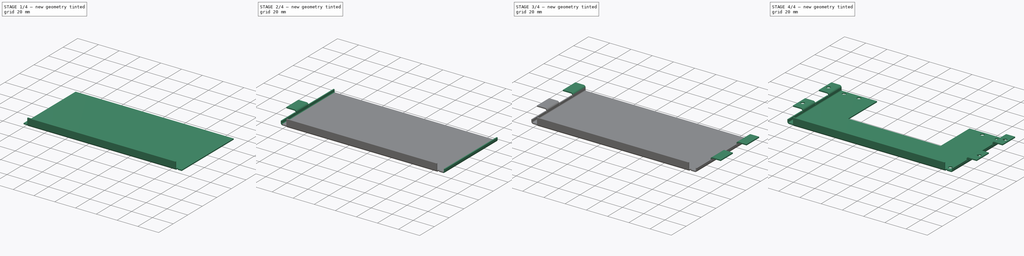
[diagram: build sequence overview — one tinted view per stage of 4, left to right]
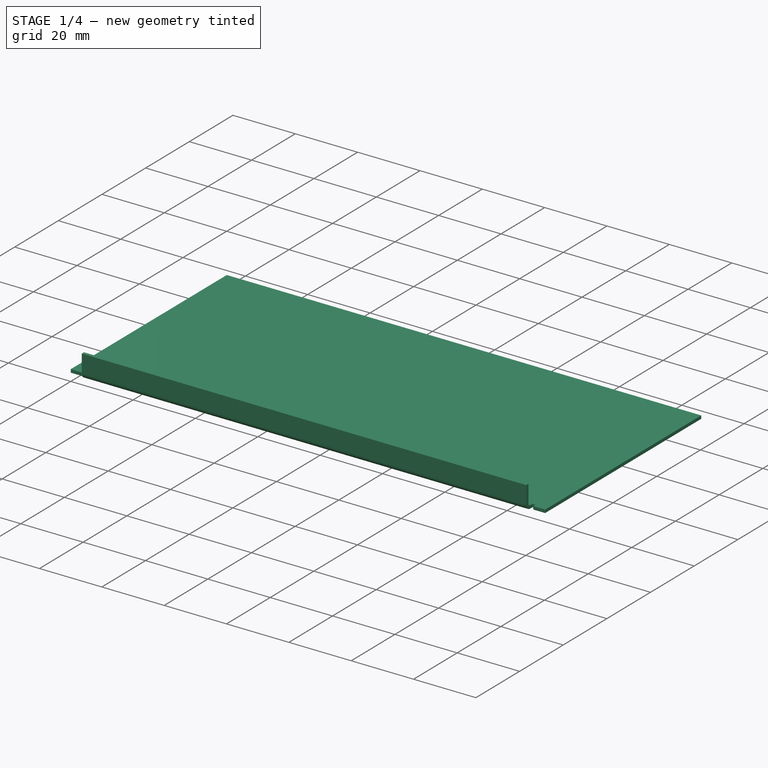
[diagram: stage 1 of 4 — iso view after this stage's code; geometry added in this stage tinted green]
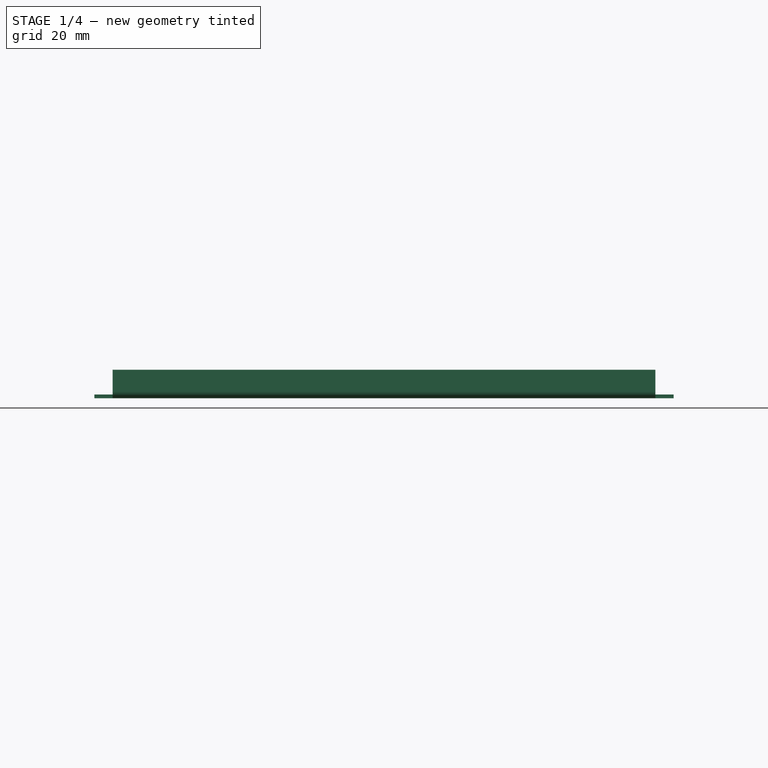
[diagram: stage 1 of 4 — front view after this stage's code; geometry added in this stage tinted green]
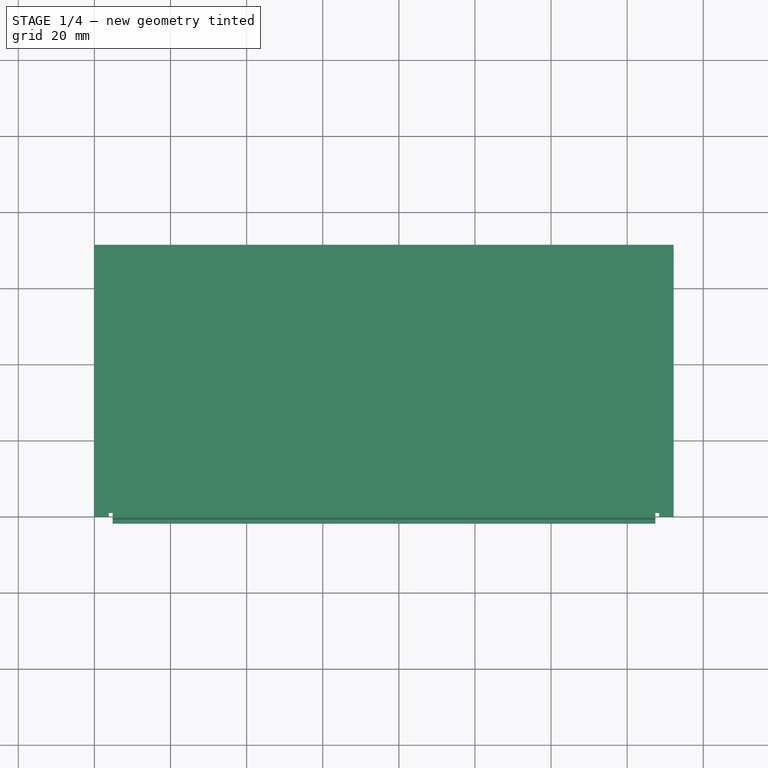
[diagram: stage 1 of 4 — top view after this stage's code; geometry added in this stage tinted green]
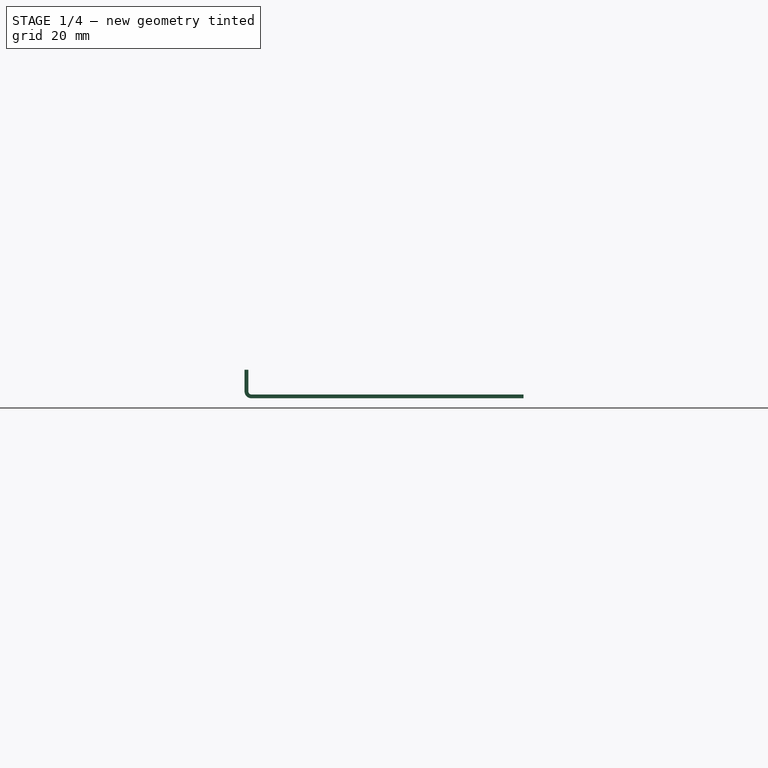
[diagram: stage 1 of 4 — right view after this stage's code; geometry added in this stage tinted green]
FCSTD DOCUMENT  (FreeCAD 0.16R6706 (Git))
Label: emi-prototyp7-ramka-ekran_10_1
License: All rights reserved
LicenseURL: http://en.wikipedia.org/wiki/All_rights_reserved
objects: Part::FeaturePython×7, Sketcher::SketchObject×3, PartDesign::Pocket×2, Part::Box×1, Part::Feature×1
note: 16 computed .brp shape members not serialized (recipe doc carries the construction recipe); baked Part::Feature solids carry a one-line shape summary decoded from their .brp

FEATURE [Part::Box] Box  label="Kostka"
  Height = 1
  Length = 152.2
  Width = 71.5
FEATURE [Part::FeaturePython] Bend  # WARN: FeaturePython — macro-defined, semantics opaque (R4)
  angle = 90
  baseObject = -> Box [Face3]
  gap1 = 4.8
  gap2 = 4.8
  invert = false
  length = 5.7
  radius = 0.8
  reliefd = 1
  reliefw = 1
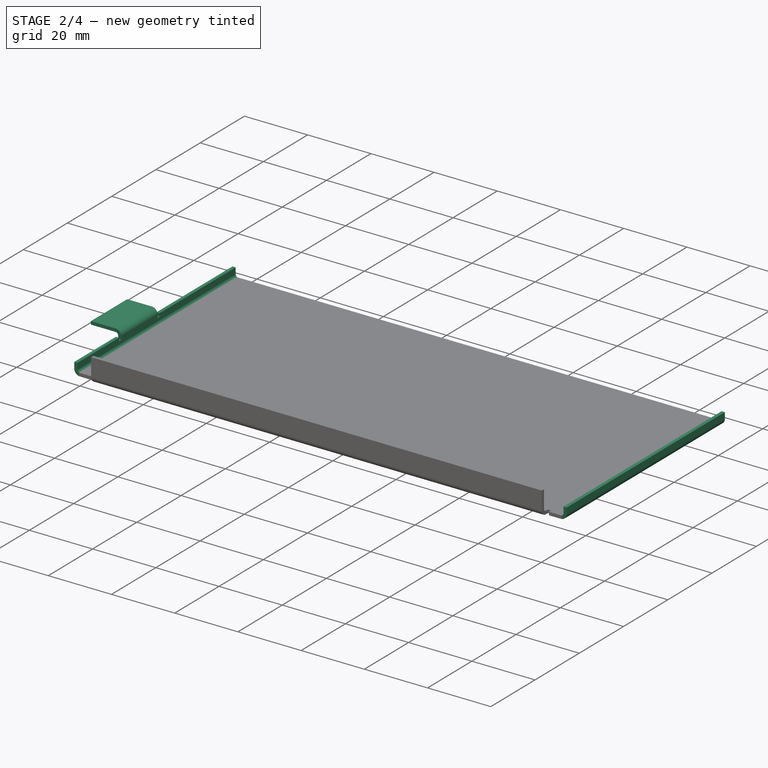
[diagram: stage 2 of 4 — iso view after this stage's code; geometry added in this stage tinted green]
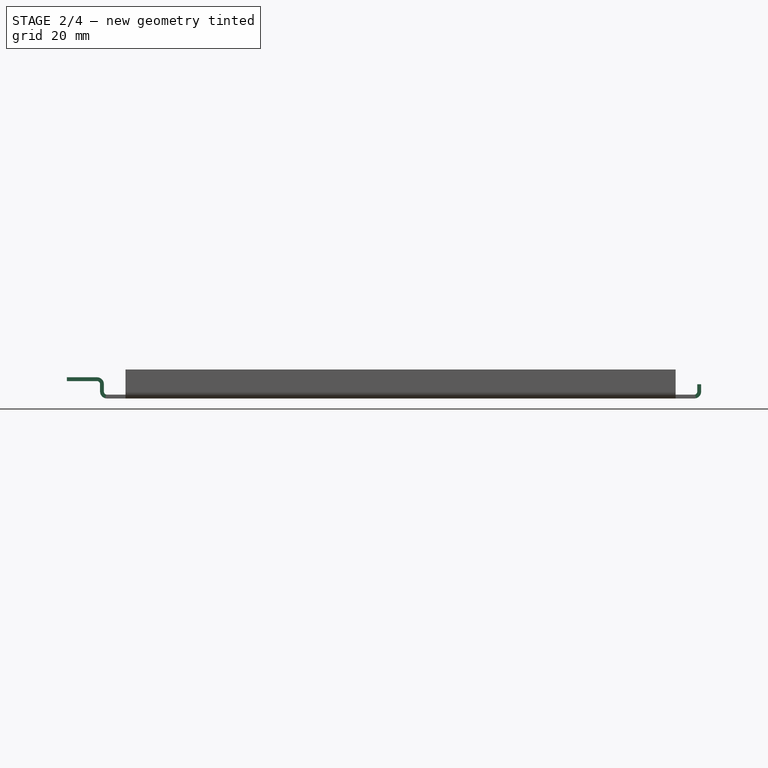
[diagram: stage 2 of 4 — front view after this stage's code; geometry added in this stage tinted green]
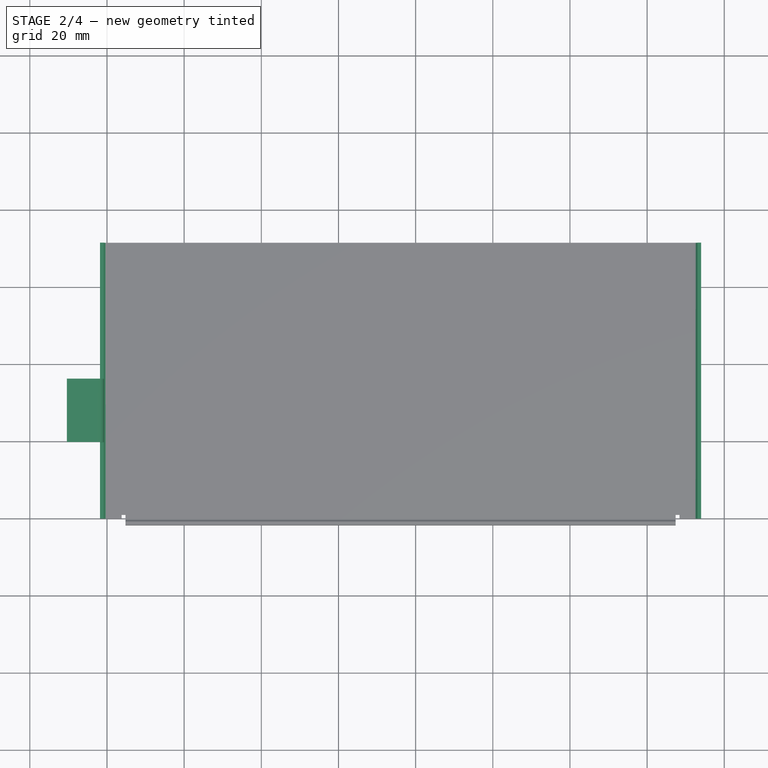
[diagram: stage 2 of 4 — top view after this stage's code; geometry added in this stage tinted green]
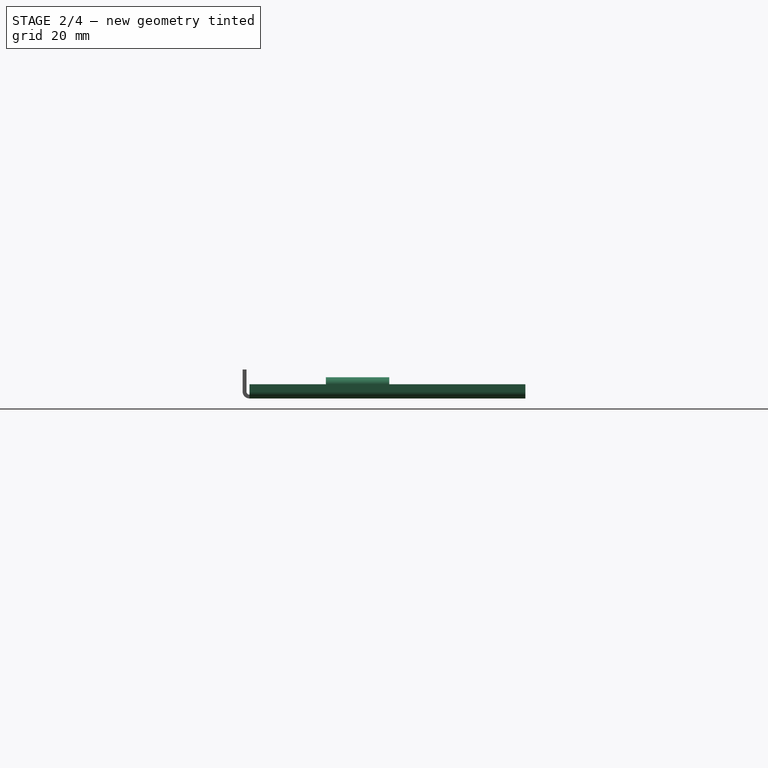
[diagram: stage 2 of 4 — right view after this stage's code; geometry added in this stage tinted green]
FEATURE [Part::FeaturePython] Bend001  # WARN: FeaturePython — macro-defined, semantics opaque (R4)
  angle = 90
  baseObject = -> Bend [Face17]
  gap1 = 0
  gap2 = 0
  invert = false
  length = 1.9
  radius = 0.8
  reliefd = 1
  reliefw = 0.5
FEATURE [Part::FeaturePython] Bend002  # WARN: FeaturePython — macro-defined, semantics opaque (R4)
  angle = 90
  baseObject = -> Bend001 [Face15]
  gap1 = 0
  gap2 = 0
  invert = false
  length = 1.9
  radius = 0.8
  reliefd = 1
  reliefw = 0.5
FEATURE [Part::FeaturePython] Bend003  # WARN: FeaturePython — macro-defined, semantics opaque (R4)
  angle = 90
  baseObject = -> Bend002 [Face34]
  gap1 = 19.8
  gap2 = 35.3
  invert = true
  length = 7.8
  radius = 0.8
  reliefd = 1
  reliefw = 1
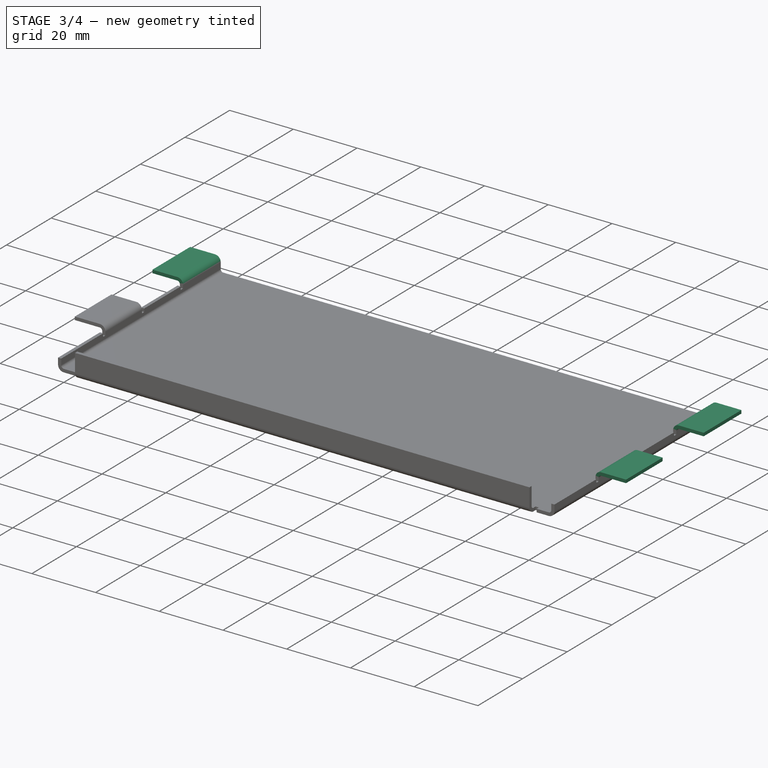
[diagram: stage 3 of 4 — iso view after this stage's code; geometry added in this stage tinted green]
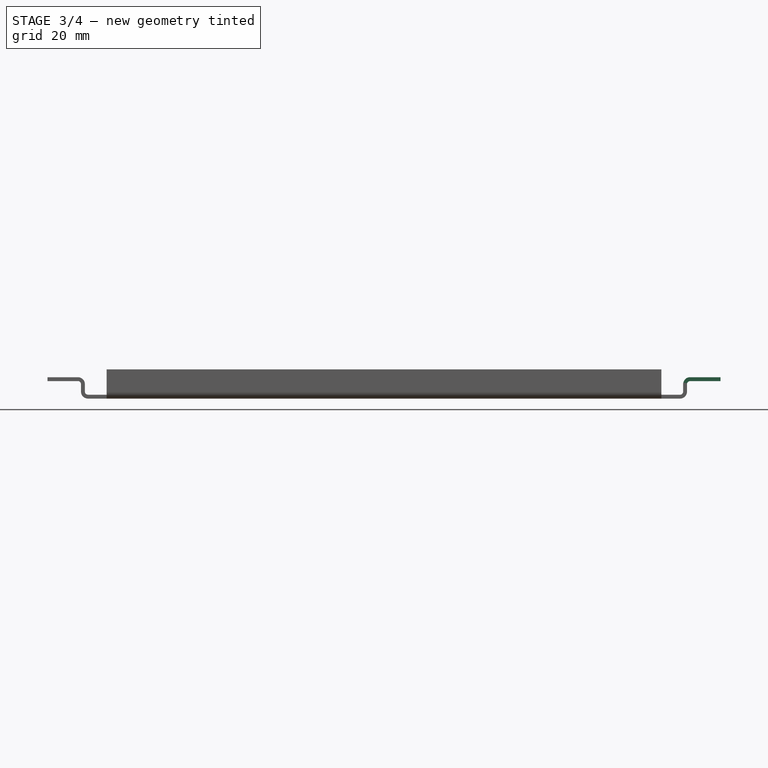
[diagram: stage 3 of 4 — front view after this stage's code; geometry added in this stage tinted green]
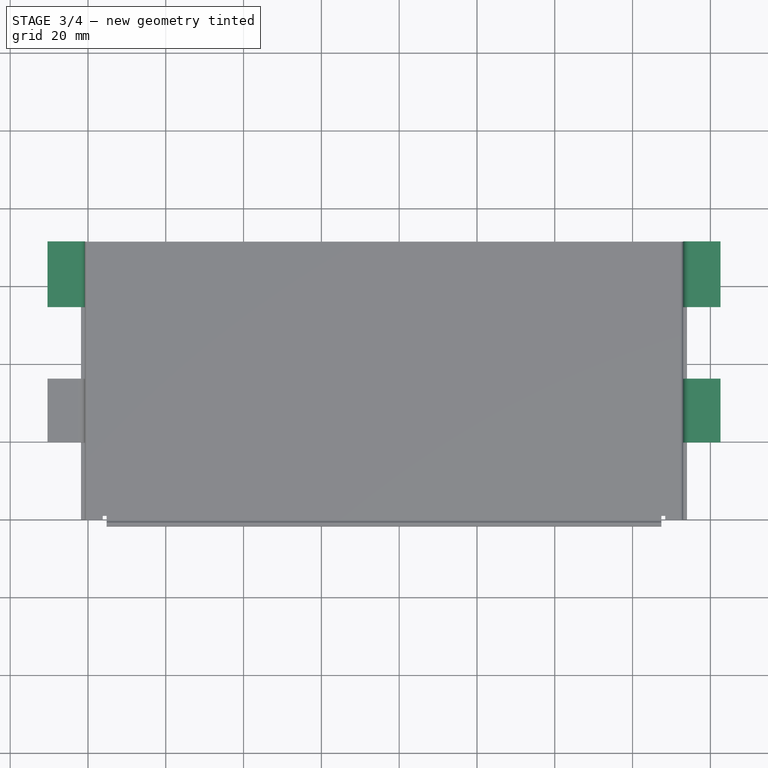
[diagram: stage 3 of 4 — top view after this stage's code; geometry added in this stage tinted green]
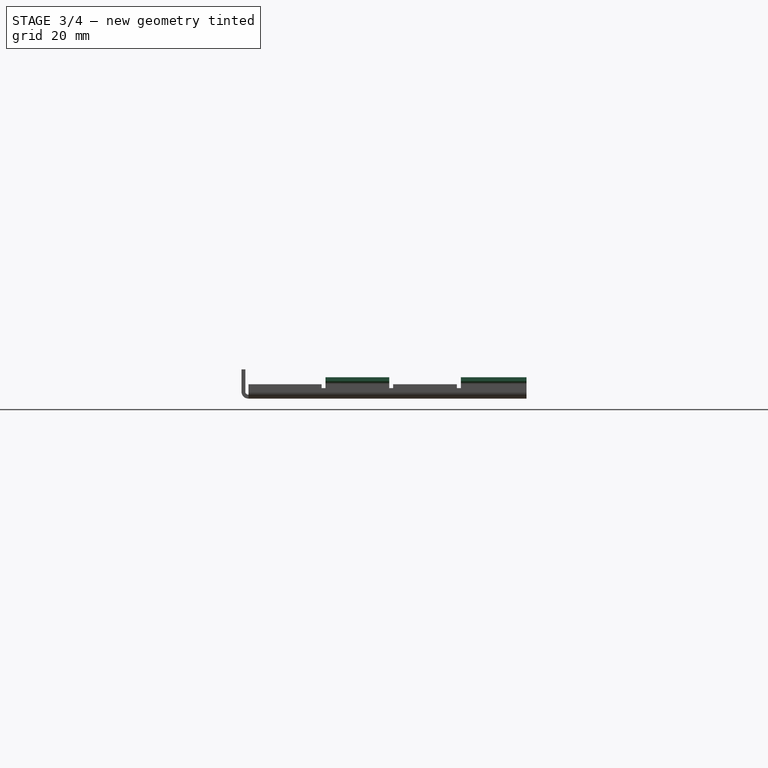
[diagram: stage 3 of 4 — right view after this stage's code; geometry added in this stage tinted green]
FEATURE [Part::FeaturePython] Bend004  # WARN: FeaturePython — macro-defined, semantics opaque (R4)
  angle = 90
  baseObject = -> Bend003 [Face17]
  gap1 = 0
  gap2 = 17.4
  invert = true
  length = 7.8
  radius = 0.8
  reliefd = 1
  reliefw = 1
FEATURE [Part::FeaturePython] Bend005  # WARN: FeaturePython — macro-defined, semantics opaque (R4)
  angle = 90
  baseObject = -> Bend004 [Face63]
  gap1 = 19.8
  gap2 = 35.3
  invert = true
  length = 7.8
  radius = 0.8
  reliefd = 1
  reliefw = 1
FEATURE [Part::FeaturePython] Bend006  # WARN: FeaturePython — macro-defined, semantics opaque (R4)
  angle = 90
  baseObject = -> Bend005 [Face17]
  gap1 = 0
  gap2 = 17.4
  invert = true
  length = 7.8
  radius = 0.8
  reliefd = 1
  reliefw = 1
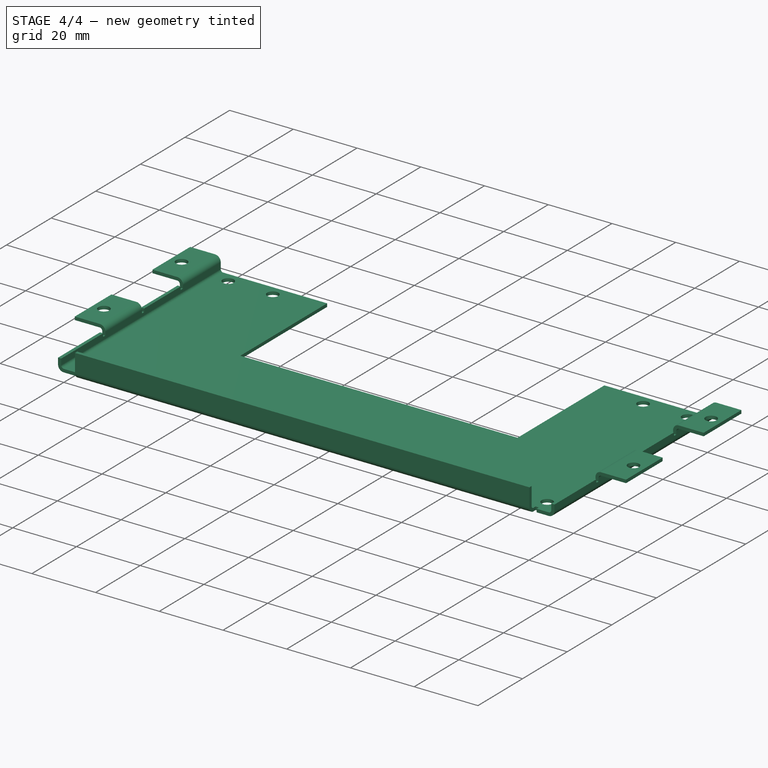
[diagram: stage 4 of 4 — iso view after this stage's code; geometry added in this stage tinted green]
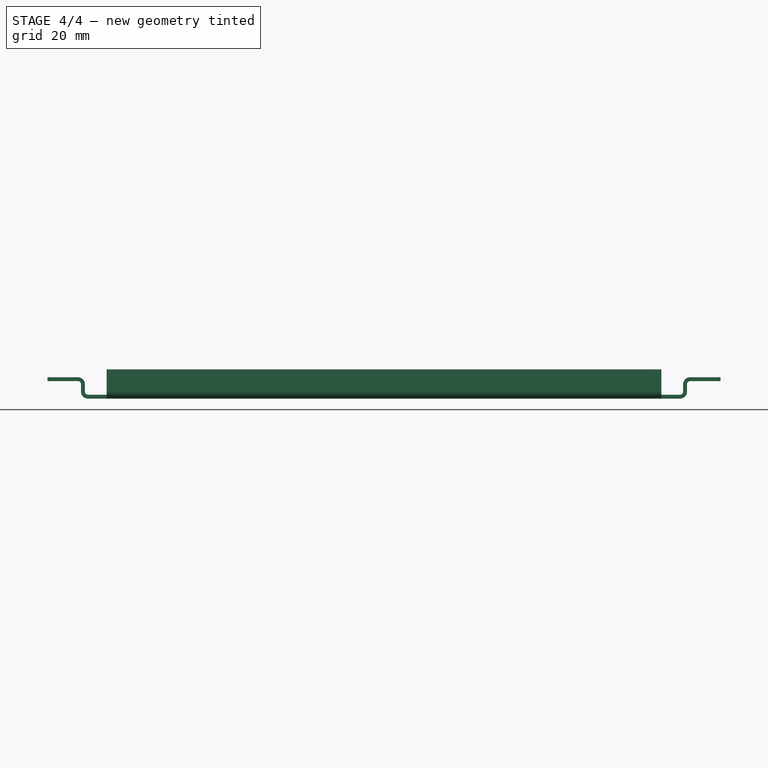
[diagram: stage 4 of 4 — front view after this stage's code; geometry added in this stage tinted green]
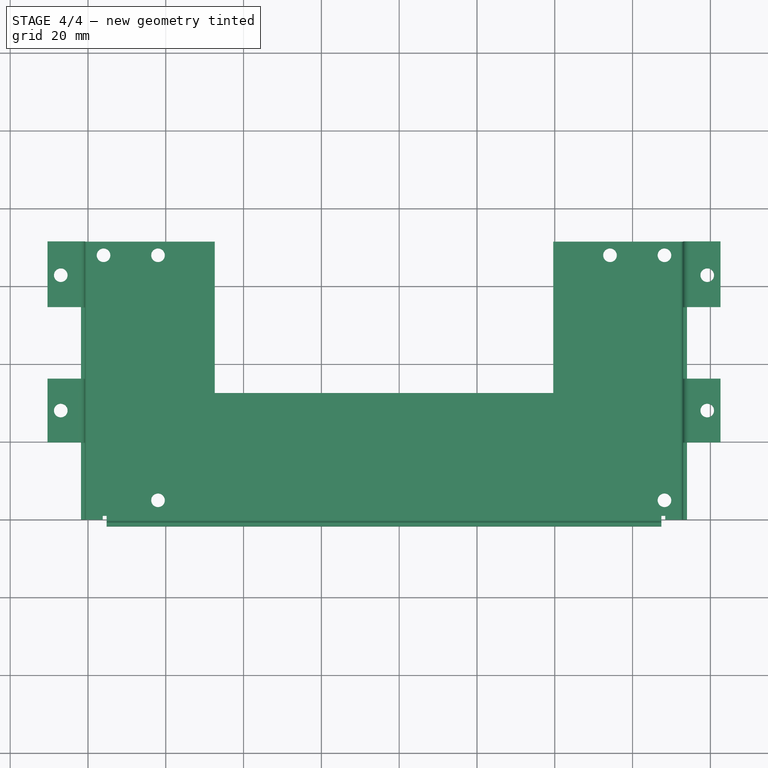
[diagram: stage 4 of 4 — top view after this stage's code; geometry added in this stage tinted green]
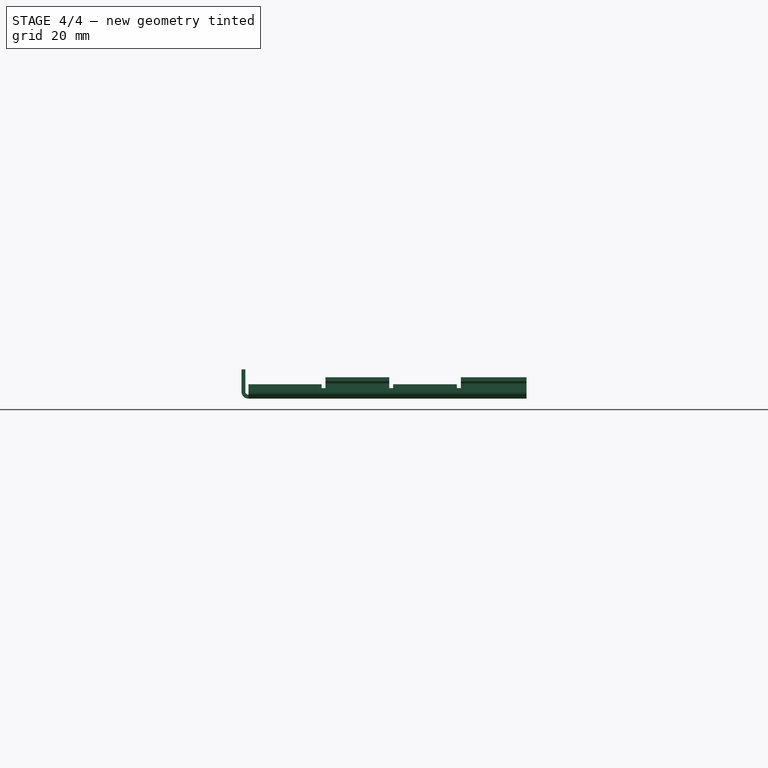
[diagram: stage 4 of 4 — right view after this stage's code; geometry added in this stage tinted green]
FEATURE [Sketcher::SketchObject] Sketch
  Placement = pos=(0,-1.8,0) rot=(1,0,0;1.5708rad)
  Support = -> Bend006 [Face59]
  sketch-geometry (5):
    g0: Circle CenterX=15.8 CenterY=3.3 CenterZ=0 NormalX=0 NormalY=0 NormalZ=1 Radius=1.25
    g1: Circle CenterX=121.3 CenterY=3.3 CenterZ=0 NormalX=0 NormalY=0 NormalZ=1 Radius=1.25
    g2: Circle CenterX=136.4 CenterY=3.3 CenterZ=0 NormalX=0 NormalY=0 NormalZ=1 Radius=1.25
    g3: Circle CenterX=30.9 CenterY=3.3 CenterZ=0 NormalX=0 NormalY=0 NormalZ=1 Radius=1.25
    g4: LineSegment [constr] StartX=76.1 StartY=35.7 StartZ=0 EndX=76.1 EndY=-6.5 EndZ=0
  constraints (11):
    c: Radius(g0) = 1.25
    c: DistanceX(g0,g1) = 105.5
    c: DistanceX(g3,g2) = 105.5
    c: Equal(g0,g3)
    c: Equal(g0,g1)
    c: Equal(g0,g2)
    c: Vertical(g4)
    c: DistanceX(g-1,g4) = 76.1
    c: Symmetric(g2,g0,g4)
    c: Symmetric(g3,g1,g4)
    c: DistanceY(g-1,g0) = 3.3
FEATURE [Sketcher::SketchObject] Sketch001
  Placement = pos=(0,0,5.5) rot=(0,0,1;0rad)
  Support = -> Bend006 [Face90]
  sketch-geometry (6):
    g0: Circle CenterX=-7 CenterY=28 CenterZ=0 NormalX=0 NormalY=0 NormalZ=1 Radius=1.75
    g1: Circle CenterX=-7 CenterY=62.8 CenterZ=0 NormalX=0 NormalY=0 NormalZ=1 Radius=1.75
    g2: Circle CenterX=159.2 CenterY=28 CenterZ=0 NormalX=0 NormalY=0 NormalZ=1 Radius=1.75
    g3: Circle CenterX=159.2 CenterY=62.8 CenterZ=0 NormalX=0 NormalY=0 NormalZ=1 Radius=1.75
    g4: LineSegment [constr] StartX=76.1 StartY=96.8594 StartZ=0 EndX=76.1 EndY=-19.9645 EndZ=0
    g5: LineSegment [constr] StartX=-7 StartY=51.1 StartZ=0 EndX=-7 EndY=41.7 EndZ=0
  constraints (14):
    c: DistanceY(g0) = 28
    c: DistanceY(g0,g1) = 34.8
    c: Radius(g1) = 1.75
    c: Equal(g1,g0)
    c: Equal(g1,g3)
    c: Equal(g1,g2)
    c: Vertical(g4)
    c: DistanceX(g-1,g4) = 76.1
    c: Symmetric(g0,g2,g4)
    c: Symmetric(g1,g3,g4)
    c: DistanceX(g0,g-1) = 7
    c: Vertical(g5)
    c: PointOnObject(g1,g5)
    c: PointOnObject(g0,g5)
FEATURE [PartDesign::Pocket] Pocket
  Length = 5
  Sketch = -> Sketch001
  Type = 0
FEATURE [Sketcher::SketchObject] Sketch002
  Placement = pos=(0,0,1) rot=(0,0,1;0rad)
  Support = -> Pocket [Face37]
  sketch-geometry (15):
    g0: LineSegment StartX=32.6 StartY=78.2662 StartZ=0 EndX=119.6 EndY=78.2662 EndZ=0
    g1: LineSegment StartX=119.6 StartY=78.2662 StartZ=0 EndX=119.6 EndY=32.6 EndZ=0
    g2: LineSegment StartX=119.6 StartY=32.6 StartZ=0 EndX=32.6 EndY=32.6 EndZ=0
    g3: LineSegment StartX=32.6 StartY=32.6 StartZ=0 EndX=32.6 EndY=78.2662 EndZ=0
    g4: Circle CenterX=148.2 CenterY=5 CenterZ=0 NormalX=0 NormalY=0 NormalZ=1 Radius=1.75
    g5: Circle CenterX=134.2 CenterY=68 CenterZ=0 NormalX=0 NormalY=0 NormalZ=1 Radius=1.75
    g6: Circle CenterX=4 CenterY=68 CenterZ=0 NormalX=0 NormalY=0 NormalZ=1 Radius=1.75
    g7: Circle CenterX=18 CenterY=5 CenterZ=0 NormalX=0 NormalY=0 NormalZ=1 Radius=1.75
    g8: LineSegment [constr] StartX=76.1 StartY=103.2 StartZ=0 EndX=76.1 EndY=-24.1441 EndZ=0
    g9: Circle CenterX=18 CenterY=68 CenterZ=0 NormalX=0 NormalY=0 NormalZ=1 Radius=1.75
    g10: Circle CenterX=148.2 CenterY=68 CenterZ=0 NormalX=0 NormalY=0 NormalZ=1 Radius=1.75
    g11: LineSegment [constr] StartX=26.2288 StartY=68 StartZ=0 EndX=122.476 EndY=68 EndZ=0
    g12: LineSegment [constr] StartX=60.5289 StartY=5 StartZ=0 EndX=102.345 EndY=5 EndZ=0
    g13: LineSegment [constr] StartX=148.2 StartY=48.9354 StartZ=0 EndX=148.2 EndY=19.0233 EndZ=0
    g14: LineSegment [constr] StartX=18 StartY=56.1459 StartZ=0 EndX=18 EndY=22.9787 EndZ=0
  constraints (37):
    c: Coincident(g0,g1)
    c: Coincident(g1,g2)
    c: Coincident(g2,g3)
    c: Coincident(g3,g0)
    c: Horizontal(g0)
    c: Horizontal(g2)
    c: Vertical(g1)
    c: Vertical(g3)
    c: DistanceX(g2) = 32.6
    c: DistanceY(g2) = 32.6
    c: Equal(g4,g7) = 1.75
    c: Equal(g5,g6) = 1.75
    c: DistanceY(g7,g6) = 63
    c: DistanceY(g-1,g7) = 5
    c: DistanceX(g-1,g6) = 4
    c: Equal(g4,g5)
    c: Vertical(g8)
    c: DistanceX(g-1,g8) = 76.1
    c: Equal(g9,g4)
    c: Equal(g10,g4)
    c: Symmetric(g9,g5,g8)
    c: Symmetric(g10,g6,g8)
    c: Symmetric(g2,g1,g8)
    c: DistanceX(g6,g9) = 14
    c: Radius(g4) = 1.75
    c: Horizontal(g11)
    c: PointOnObject(g9,g11)
    c: PointOnObject(g6,g11)
    c: Horizontal(g12)
    c: PointOnObject(g4,g12)
    c: PointOnObject(g7,g12)
    c: Vertical(g13)
    c: PointOnObject(g10,g13)
    c: PointOnObject(g4,g13)
    c: Vertical(g14)
    c: PointOnObject(g9,g14)
    c: PointOnObject(g7,g14)
FEATURE [PartDesign::Pocket] Pocket001
  Length = 5
  Sketch = -> Sketch002
  Type = 0
FEATURE [Part::Feature] Pocket001001  label="ramka_ekran_10_1"
  shape: bbox 173 x 73.3 x 7.5 mm, 110 faces (baked)
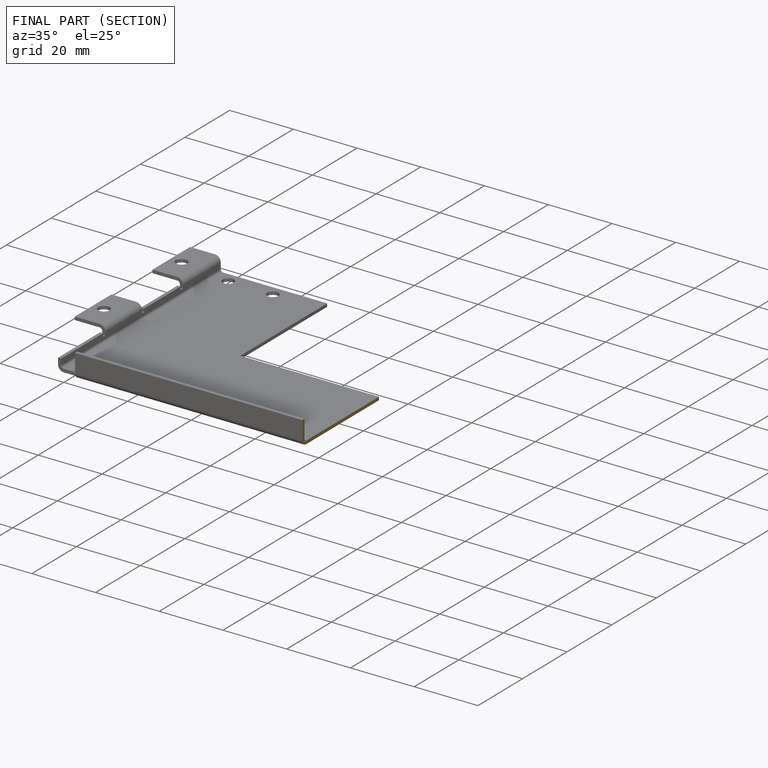
[diagram: finished part — half-section view (interior)]
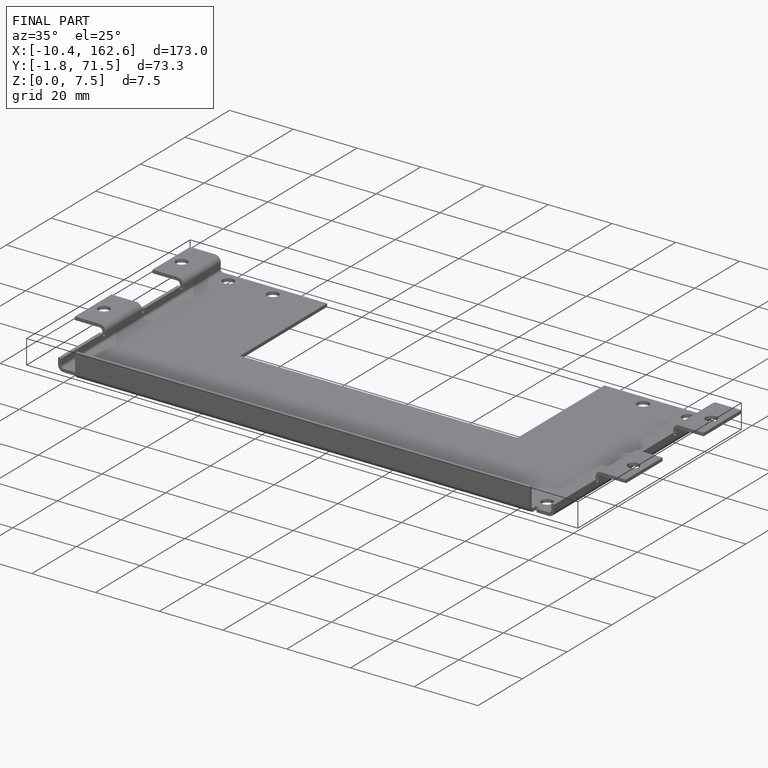
[diagram: finished part — iso view with bounding-box wireframe]
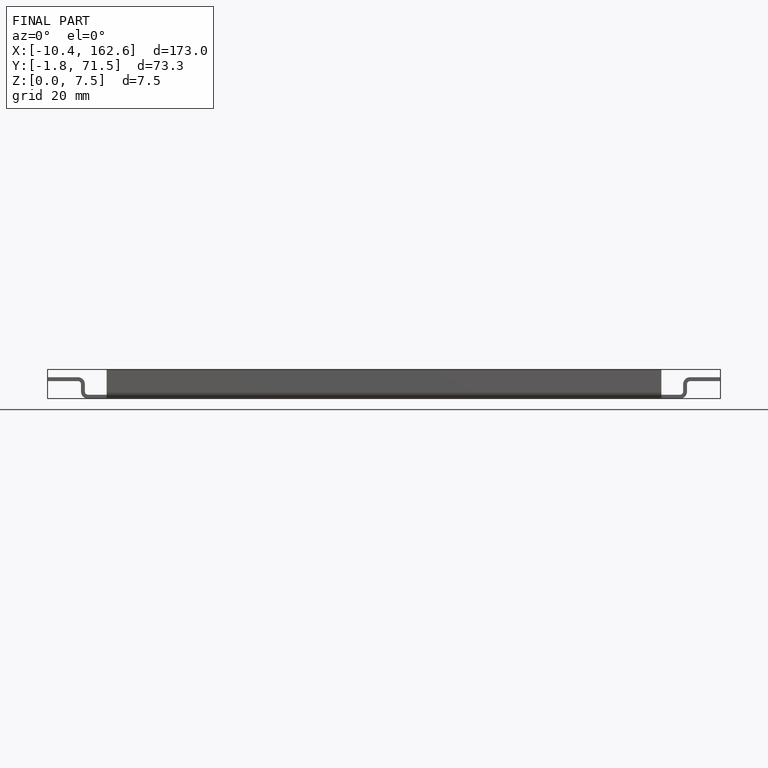
[diagram: finished part — front view with bounding-box wireframe]
